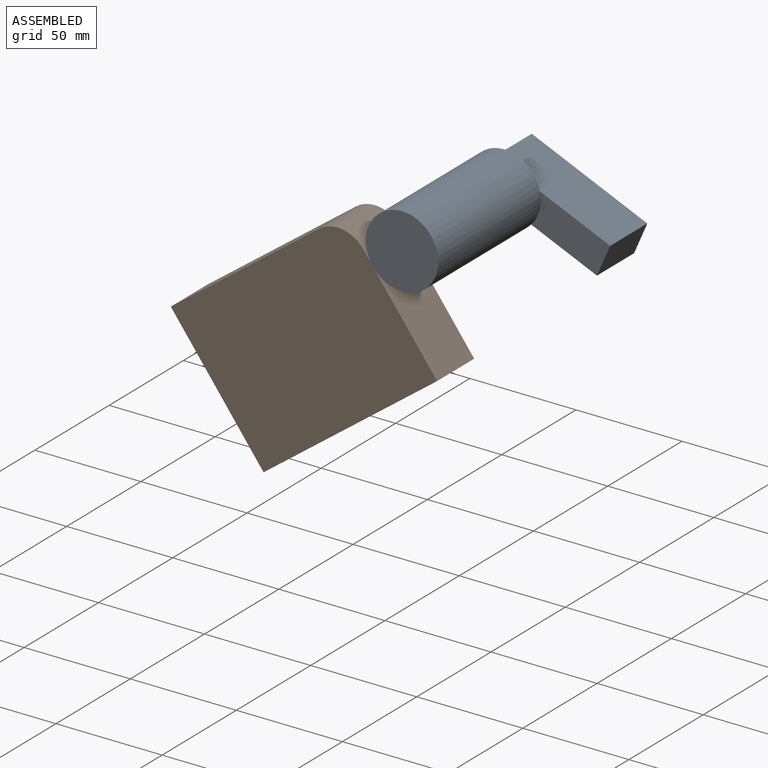
[diagram: assembled view]
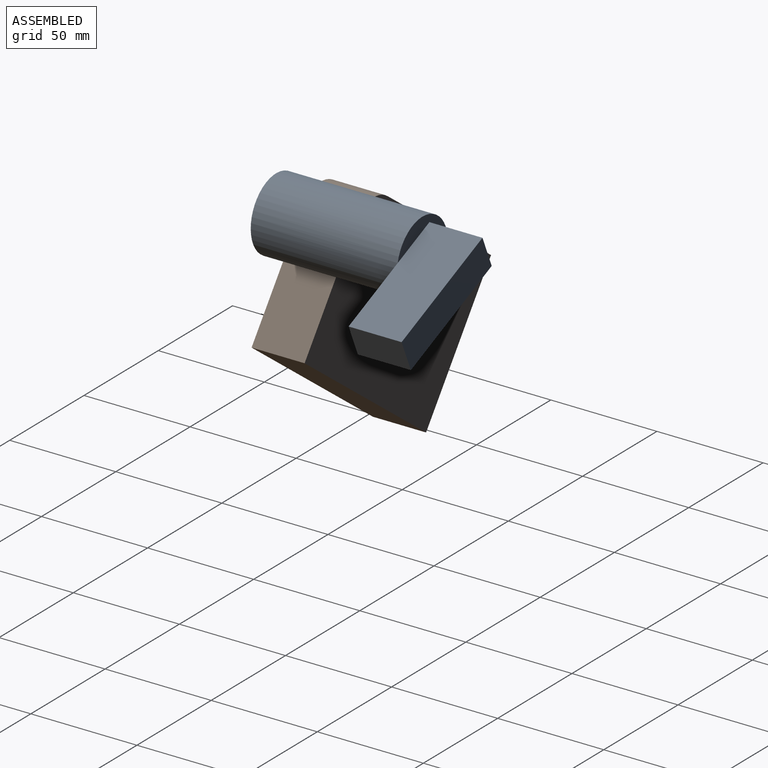
[diagram: assembled view, second angle]
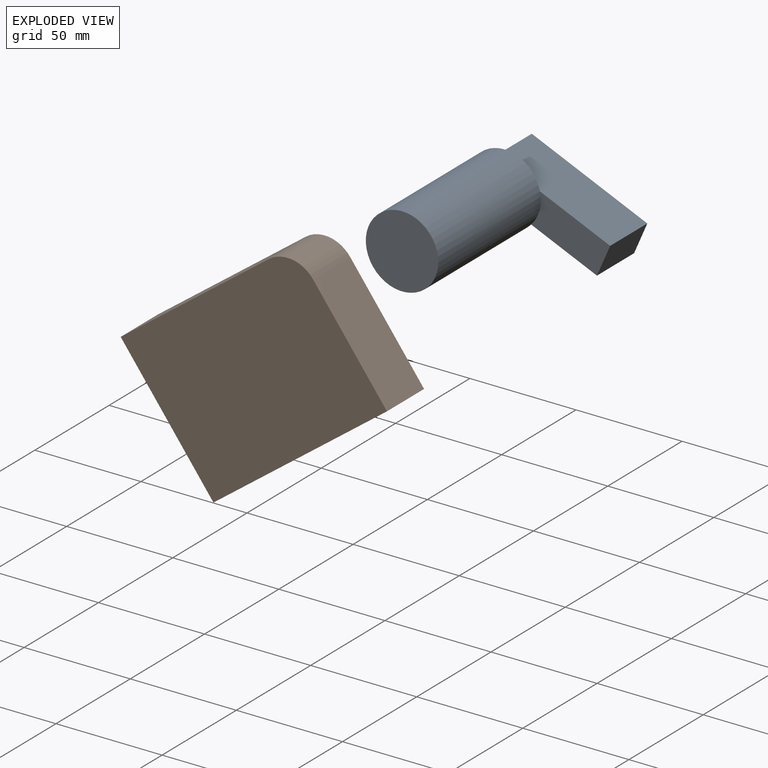
[diagram: exploded view]
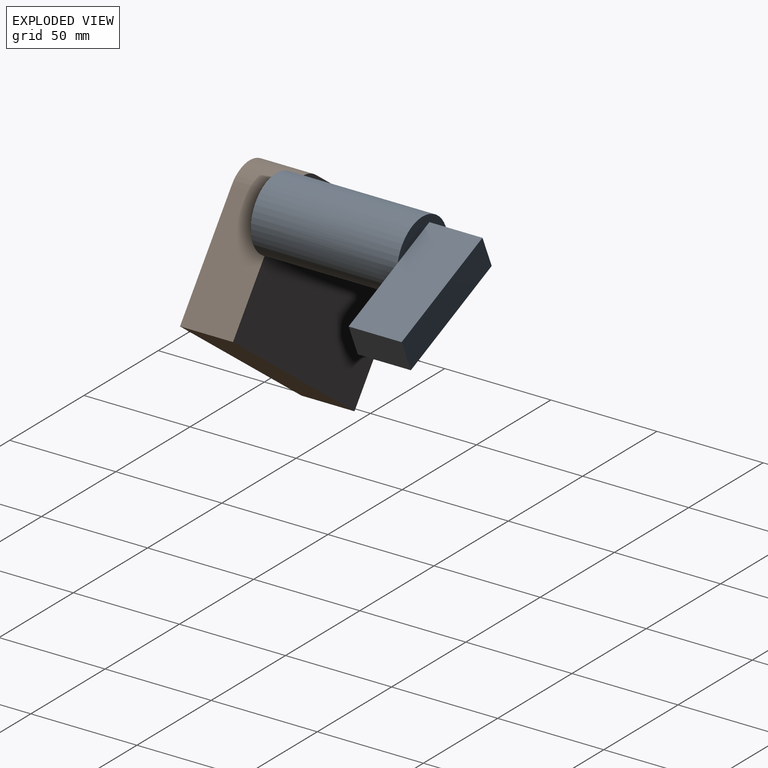
[diagram: exploded view, second angle]
ASSEMBLY  parts=2 mates=2
PART A: 9 faces, bbox 67x94x34.2 mm
  f0: plane 34.16x33.21mm, normal (0,-1,0), area 514.2mm2, adj f1,f4,f5,f6
  f1: cylinder r=17.08mm len=69mm, axis (0,1,0), area 7405.5mm2, adj f0,f2,f3
  f2: plane 34.16x34.16mm, normal (0,1,0), area 916.6mm2, adj f1
  f3: plane 36.07x15.63mm, normal (0,1,0), area 525.4mm2, adj f1,f4,f6,f7
  f4: plane 59.35x25mm, normal (0,0,1), area 1483.7mm2, adj f0,f3,f5,f7,f8
  f5: plane 25x15.63mm, normal (-1,0,0), area 390.8mm2, adj f0,f4,f6,f8
  f6: plane 59.35x25mm, normal (0,0,-1), area 1483.7mm2, adj f0,f3,f5,f7,f8
  f7: plane 25x15.63mm, normal (1,0,0), area 390.8mm2, adj f3,f4,f6,f8
  f8: plane 59.35x15.63mm, normal (0,-1,0), area 927.8mm2, adj f4,f5,f6,f7
PART B: 7 faces, bbox 101.8x25x73.3 mm
  f0: plane 101.83x25mm, normal (0,0,-1), area 2545.8mm2, adj f1,f3,f4,f5
  f1: plane 58.33x25mm, normal (1,0,0), area 1458.3mm2, adj f0,f4,f5,f6
  f2: plane 86.83x25mm, normal (0,0,1), area 2170.8mm2, adj f3,f4,f5,f6
  f3: plane 73.33x25mm, normal (-1,0,0), area 1833.3mm2, adj f0,f2,f4,f5
  f4: plane 101.83x73.33mm, normal (0,-1,0), area 7419.1mm2, adj f0,f1,f2,f3,f6
  f5: plane 101.83x73.33mm, normal (0,1,0), area 7419.1mm2, adj f0,f1,f2,f3,f6
  f6: cylinder r=15mm len=25mm, axis (0,1,0), area 589mm2, adj f1,f2,f4,f5
PLACE A rot(axis=(-0.98,0,0.2),180deg) t=(-20.34,-22.65,176.27)mm
PLACE B rot(axis=(0,-1,0),36.6deg) t=(-22.29,2.35,59.13)mm fixed
MATE parallel A.f1 <-> B.f4  axis (0,-1,0) through (23.95,-22.65,110.92)mm
MATE planar A.f1 <-> B.f6  axis (0,-1,0) through (23.95,-22.65,110.92)mm
